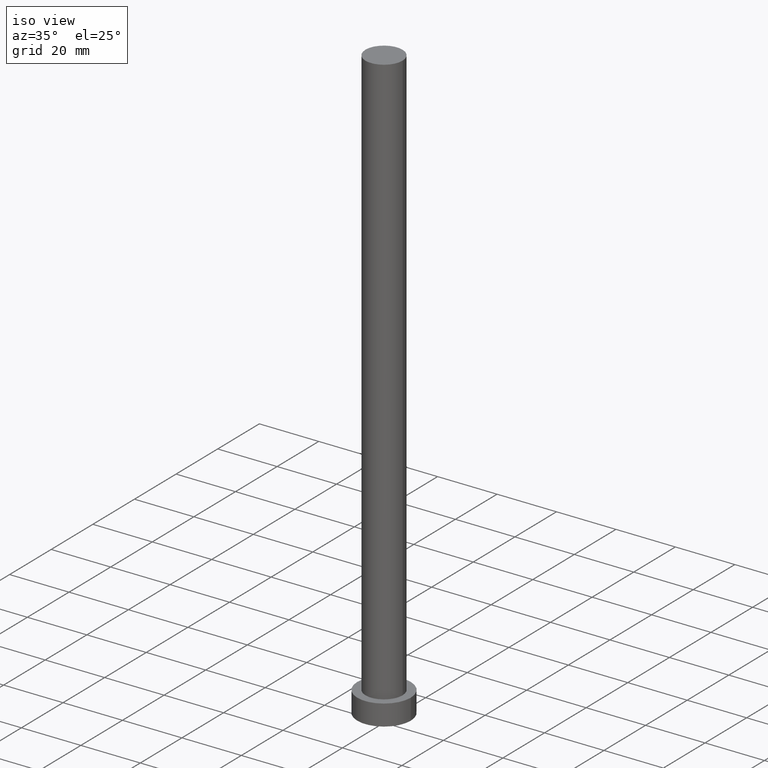
[diagram: clean part render]
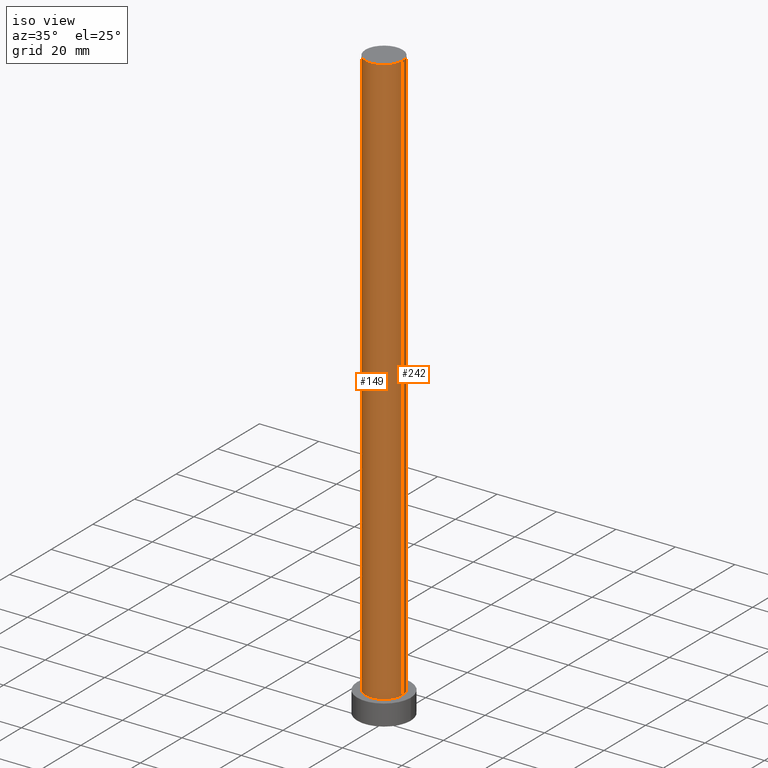
[diagram: same view with one multi-face feature highlighted, each face labeled with its STEP entity id]
A machine part, iso view. The highlighted faces form ONE feature: a constant-radius fillet chain: 2 tangent blend faces with common blend radius 6.25 mm. The faces share edges in the B-rep.
Their STEP definitions:
[1] entity #242 (Cylinder):
#2 = DIRECTION ( 'NONE',  ( 0.000000000000000000, 0.000000000000000000, 1.000000000000000000 ) ) ;
#10 = DIRECTION ( 'NONE',  ( 0.000000000000000000, 0.000000000000000000, 1.000000000000000000 ) ) ;
#12 = CARTESIAN_POINT ( 'NONE',  ( -6.250000000000000000, 0.000000000000000000, 7.000000000000000000 ) ) ;
#14 = AXIS2_PLACEMENT_3D ( 'NONE', #181, #10, #124 ) ;
#17 = DIRECTION ( 'NONE',  ( -0.000000000000000000, -0.000000000000000000, -1.000000000000000000 ) ) ;
#25 = EDGE_LOOP ( 'NONE', ( #244, #75, #113, #139 ) ) ;
#28 = AXIS2_PLACEMENT_3D ( 'NONE', #189, #2, #145 ) ;
#34 = CARTESIAN_POINT ( 'NONE',  ( -6.250000000000000000, 0.000000000000000000, 200.0000000000000000 ) ) ;
#38 = EDGE_CURVE ( 'NONE', #82, #49, #72, .T. ) ;
#47 = CYLINDRICAL_SURFACE ( 'NONE', #178, 6.250000000000000000 ) ;
#49 = VERTEX_POINT ( 'NONE', #12 ) ;
#53 = CARTESIAN_POINT ( 'NONE',  ( -6.250000000000000000, 0.000000000000000000, 200.0000000000000000 ) ) ;
#61 = VECTOR ( 'NONE', #229, 1000.000000000000000 ) ;
#64 = DIRECTION ( 'NONE',  ( -1.000000000000000000, 0.000000000000000000, 0.000000000000000000 ) ) ;
#72 = CIRCLE ( 'NONE', #14, 6.250000000000000000 ) ;
#75 = ORIENTED_EDGE ( 'NONE', *, *, #91, .T. ) ;
#80 = DIRECTION ( 'NONE',  ( -0.000000000000000000, -0.000000000000000000, -1.000000000000000000 ) ) ;
#82 = VERTEX_POINT ( 'NONE', #119 ) ;
#89 = VECTOR ( 'NONE', #17, 1000.000000000000000 ) ;
#91 = EDGE_CURVE ( 'NONE', #243, #82, #171, .T. ) ;
#92 = VERTEX_POINT ( 'NONE', #53 ) ;
#113 = ORIENTED_EDGE ( 'NONE', *, *, #38, .T. ) ;
#119 = CARTESIAN_POINT ( 'NONE',  ( 6.250000000000000000, 7.654042494670957606E-16, 7.000000000000000000 ) ) ;
#124 = DIRECTION ( 'NONE',  ( 1.000000000000000000, 0.000000000000000000, 0.000000000000000000 ) ) ;
#126 = EDGE_CURVE ( 'NONE', #92, #49, #193, .T. ) ;
#133 = FACE_OUTER_BOUND ( 'NONE', #25, .T. ) ;
#139 = ORIENTED_EDGE ( 'NONE', *, *, #126, .F. ) ;
#145 = DIRECTION ( 'NONE',  ( 1.000000000000000000, 0.000000000000000000, 0.000000000000000000 ) ) ;
#146 = CARTESIAN_POINT ( 'NONE',  ( 0.000000000000000000, 0.000000000000000000, 200.0000000000000000 ) ) ;
#152 = CARTESIAN_POINT ( 'NONE',  ( 6.250000000000000000, 7.654042494670957606E-16, 200.0000000000000000 ) ) ;
#171 = LINE ( 'NONE', #152, #61 ) ;
#178 = AXIS2_PLACEMENT_3D ( 'NONE', #146, #80, #64 ) ;
#181 = CARTESIAN_POINT ( 'NONE',  ( 0.000000000000000000, 0.000000000000000000, 7.000000000000000000 ) ) ;
#189 = CARTESIAN_POINT ( 'NONE',  ( 0.000000000000000000, 0.000000000000000000, 200.0000000000000000 ) ) ;
#193 = LINE ( 'NONE', #34, #89 ) ;
#202 = CARTESIAN_POINT ( 'NONE',  ( 6.250000000000000000, 7.654042494670957606E-16, 200.0000000000000000 ) ) ;
#226 = EDGE_CURVE ( 'NONE', #243, #92, #241, .T. ) ;
#229 = DIRECTION ( 'NONE',  ( -0.000000000000000000, -0.000000000000000000, -1.000000000000000000 ) ) ;
#241 = CIRCLE ( 'NONE', #28, 6.250000000000000000 ) ;
#242 = ADVANCED_FACE ( 'NONE', ( #133 ), #47, .T. ) ;
#243 = VERTEX_POINT ( 'NONE', #202 ) ;
#244 = ORIENTED_EDGE ( 'NONE', *, *, #226, .F. ) ;
[2] entity #149 (Cylinder):
#12 = CARTESIAN_POINT ( 'NONE',  ( -6.250000000000000000, 0.000000000000000000, 7.000000000000000000 ) ) ;
#17 = DIRECTION ( 'NONE',  ( -0.000000000000000000, -0.000000000000000000, -1.000000000000000000 ) ) ;
#27 = DIRECTION ( 'NONE',  ( 1.000000000000000000, 0.000000000000000000, 0.000000000000000000 ) ) ;
#32 = ORIENTED_EDGE ( 'NONE', *, *, #126, .T. ) ;
#34 = CARTESIAN_POINT ( 'NONE',  ( -6.250000000000000000, 0.000000000000000000, 200.0000000000000000 ) ) ;
#49 = VERTEX_POINT ( 'NONE', #12 ) ;
#53 = CARTESIAN_POINT ( 'NONE',  ( -6.250000000000000000, 0.000000000000000000, 200.0000000000000000 ) ) ;
#61 = VECTOR ( 'NONE', #229, 1000.000000000000000 ) ;
#77 = EDGE_LOOP ( 'NONE', ( #98, #101, #32, #131 ) ) ;
#78 = DIRECTION ( 'NONE',  ( 1.000000000000000000, 0.000000000000000000, 0.000000000000000000 ) ) ;
#82 = VERTEX_POINT ( 'NONE', #119 ) ;
#83 = AXIS2_PLACEMENT_3D ( 'NONE', #182, #255, #78 ) ;
#84 = EDGE_CURVE ( 'NONE', #92, #243, #147, .T. ) ;
#89 = VECTOR ( 'NONE', #17, 1000.000000000000000 ) ;
#91 = EDGE_CURVE ( 'NONE', #243, #82, #171, .T. ) ;
#92 = VERTEX_POINT ( 'NONE', #53 ) ;
#98 = ORIENTED_EDGE ( 'NONE', *, *, #91, .F. ) ;
#100 = AXIS2_PLACEMENT_3D ( 'NONE', #252, #208, #27 ) ;
#101 = ORIENTED_EDGE ( 'NONE', *, *, #84, .F. ) ;
#102 = CYLINDRICAL_SURFACE ( 'NONE', #112, 6.250000000000000000 ) ;
#112 = AXIS2_PLACEMENT_3D ( 'NONE', #144, #220, #121 ) ;
#119 = CARTESIAN_POINT ( 'NONE',  ( 6.250000000000000000, 7.654042494670957606E-16, 7.000000000000000000 ) ) ;
#121 = DIRECTION ( 'NONE',  ( -1.000000000000000000, 0.000000000000000000, 0.000000000000000000 ) ) ;
#126 = EDGE_CURVE ( 'NONE', #92, #49, #193, .T. ) ;
#131 = ORIENTED_EDGE ( 'NONE', *, *, #204, .T. ) ;
#144 = CARTESIAN_POINT ( 'NONE',  ( 0.000000000000000000, 0.000000000000000000, 200.0000000000000000 ) ) ;
#147 = CIRCLE ( 'NONE', #100, 6.250000000000000000 ) ;
#149 = ADVANCED_FACE ( 'NONE', ( #235 ), #102, .T. ) ;
#152 = CARTESIAN_POINT ( 'NONE',  ( 6.250000000000000000, 7.654042494670957606E-16, 200.0000000000000000 ) ) ;
#155 = CIRCLE ( 'NONE', #83, 6.250000000000000000 ) ;
#171 = LINE ( 'NONE', #152, #61 ) ;
#182 = CARTESIAN_POINT ( 'NONE',  ( 0.000000000000000000, 0.000000000000000000, 7.000000000000000000 ) ) ;
#193 = LINE ( 'NONE', #34, #89 ) ;
#202 = CARTESIAN_POINT ( 'NONE',  ( 6.250000000000000000, 7.654042494670957606E-16, 200.0000000000000000 ) ) ;
#204 = EDGE_CURVE ( 'NONE', #49, #82, #155, .T. ) ;
#208 = DIRECTION ( 'NONE',  ( 0.000000000000000000, 0.000000000000000000, 1.000000000000000000 ) ) ;
#220 = DIRECTION ( 'NONE',  ( -0.000000000000000000, -0.000000000000000000, -1.000000000000000000 ) ) ;
#229 = DIRECTION ( 'NONE',  ( -0.000000000000000000, -0.000000000000000000, -1.000000000000000000 ) ) ;
#235 = FACE_OUTER_BOUND ( 'NONE', #77, .T. ) ;
#243 = VERTEX_POINT ( 'NONE', #202 ) ;
#252 = CARTESIAN_POINT ( 'NONE',  ( 0.000000000000000000, 0.000000000000000000, 200.0000000000000000 ) ) ;
#255 = DIRECTION ( 'NONE',  ( 0.000000000000000000, 0.000000000000000000, 1.000000000000000000 ) ) ;